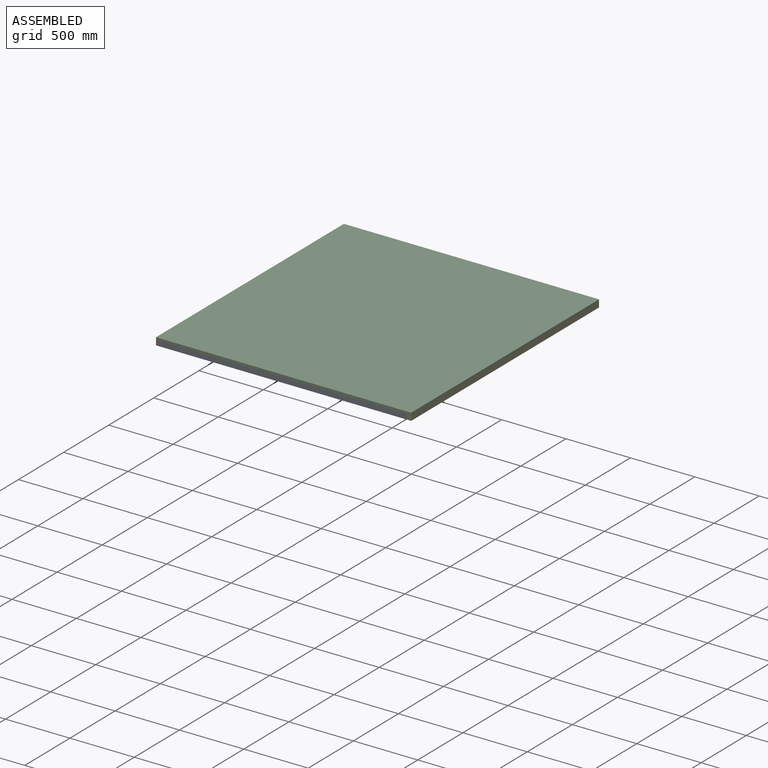
[diagram: assembled view]
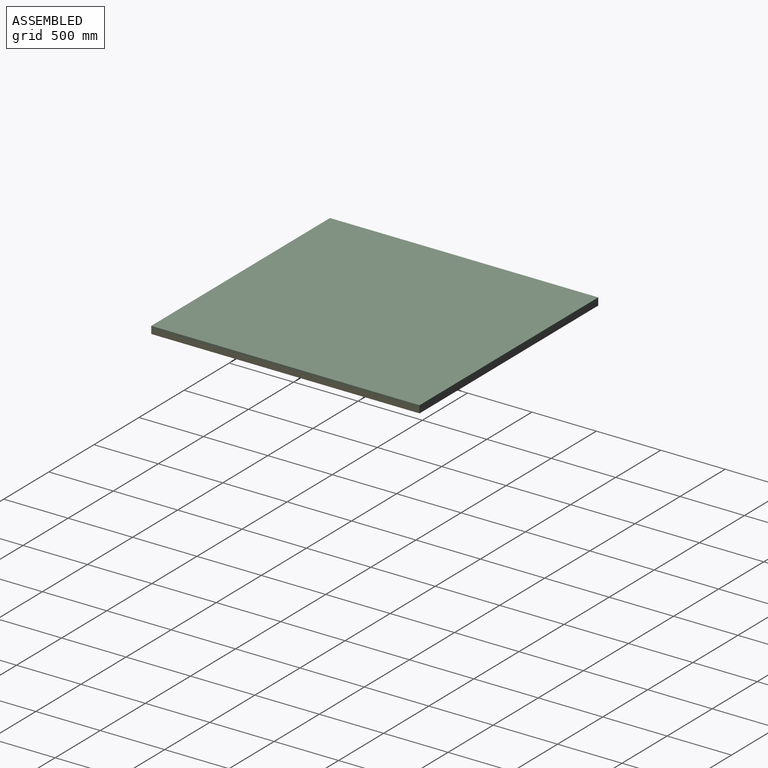
[diagram: assembled view, second angle]
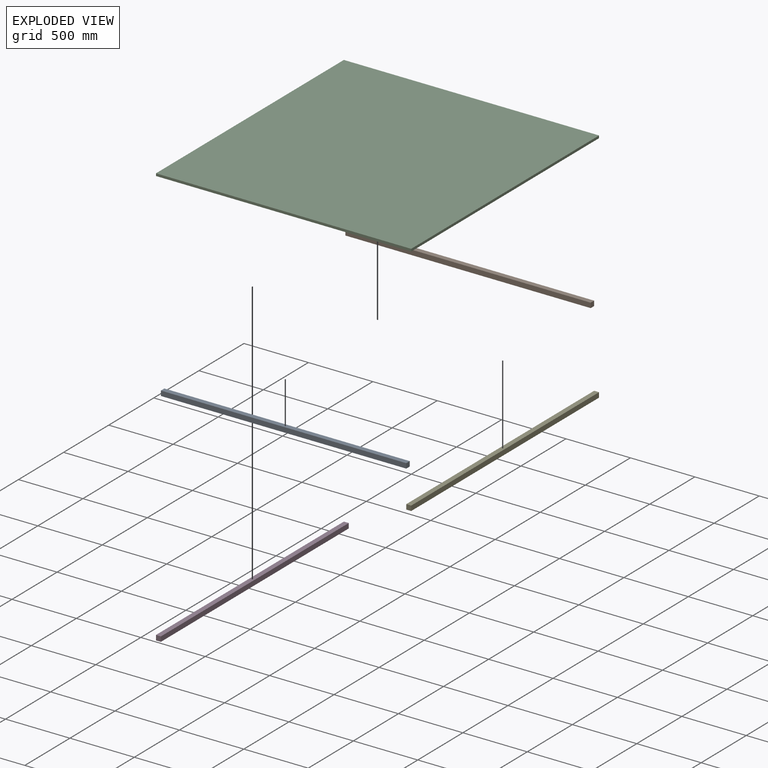
[diagram: exploded view]
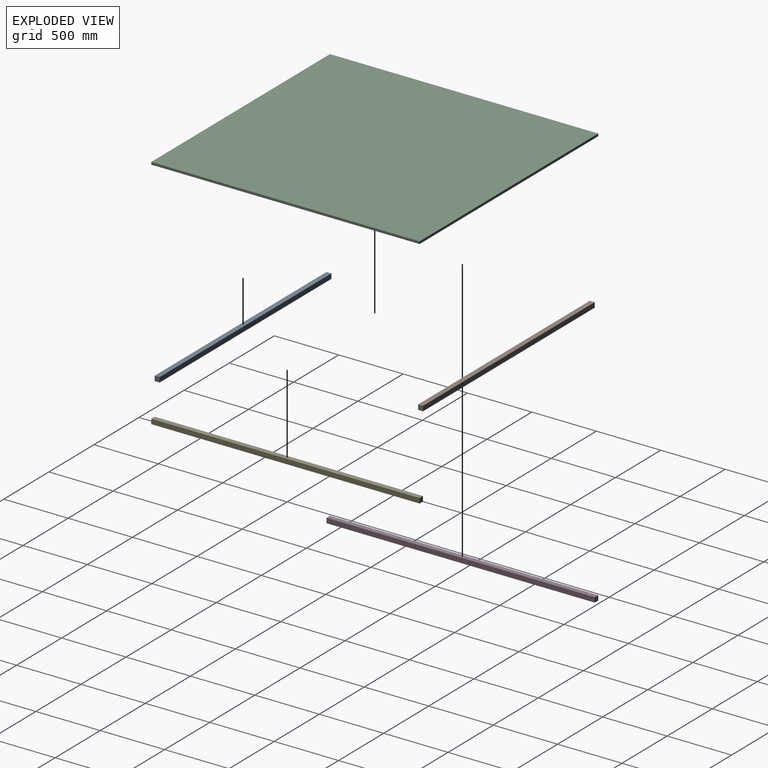
[diagram: exploded view, second angle]
ASSEMBLY  parts=5 mates=4
PART A: 6 faces, bbox 1905x38.1x38.1 mm
  f0: plane 1905x38.1mm, normal (0,1,0), area 72580.5mm2, adj f1,f3,f4,f5
  f1: plane 38.1x38.1mm, normal (-1,0,0), area 1451.6mm2, adj f0,f2,f4,f5
  f2: plane 1905x38.1mm, normal (0,-1,0), area 72580.5mm2, adj f1,f3,f4,f5
  f3: plane 38.1x38.1mm, normal (1,0,0), area 1451.6mm2, adj f0,f2,f4,f5
  f4: plane 1905x38.1mm, normal (0,0,1), area 72580.5mm2, adj f0,f1,f2,f3
  f5: plane 1905x38.1mm, normal (0,0,-1), area 72580.5mm2, adj f0,f1,f2,f3
PART B: same geometry as A
PART C: 6 faces, bbox 1981.2x2082.8x19.1 mm
  f0: plane 1981.2x19.05mm, normal (0,-1,0), area 37741.9mm2, adj f1,f3,f4,f5
  f1: plane 2082.8x19.05mm, normal (1,0,0), area 39677.3mm2, adj f0,f2,f4,f5
  f2: plane 1981.2x19.05mm, normal (0,1,0), area 37741.9mm2, adj f1,f3,f4,f5
  f3: plane 2082.8x19.05mm, normal (-1,0,0), area 39677.3mm2, adj f0,f2,f4,f5
  f4: plane 2082.8x1981.2mm, normal (0,0,1), area 4126443.4mm2, adj f0,f1,f2,f3
  f5: plane 2082.8x1981.2mm, normal (0,0,-1), area 4126443.4mm2, adj f0,f1,f2,f3
PART D: 6 faces, bbox 38.1x2082.8x38.1 mm
  f0: plane 38.1x38.1mm, normal (0,1,0), area 1451.6mm2, adj f1,f3,f4,f5
  f1: plane 2082.8x38.1mm, normal (-1,0,0), area 79354.7mm2, adj f0,f2,f4,f5
  f2: plane 38.1x38.1mm, normal (0,-1,0), area 1451.6mm2, adj f1,f3,f4,f5
  f3: plane 2082.8x38.1mm, normal (1,0,0), area 79354.7mm2, adj f0,f2,f4,f5
  f4: plane 2082.8x38.1mm, normal (0,0,1), area 79354.7mm2, adj f0,f1,f2,f3
  f5: plane 2082.8x38.1mm, normal (0,0,-1), area 79354.7mm2, adj f0,f1,f2,f3
PART E: same geometry as D
PLACE A t=(724.44,-3567,-133.79)mm
PLACE B t=(724.44,-1522.3,-133.79)mm
PLACE C t=(648.33,-1015.43,-95.69)mm
PLACE D t=(-2097.18,-999.97,-133.79)mm
PLACE E t=(-154.08,-999.97,-133.79)mm
MATE fastened D.f0 <-> B.f0  axis (0,1,0) through (-304.17,25.97,-95.69)mm
MATE fastened C.f5 <-> D.f4  axis (0,0,1) through (-342.27,25.97,-95.69)mm
MATE fastened E.f4 <-> A.f4  axis (0,0,1) through (1600.83,-2056.83,-95.69)mm
MATE fastened E.f4 <-> C.f5  axis (0,0,-1) through (1638.93,-2056.83,-95.69)mm
